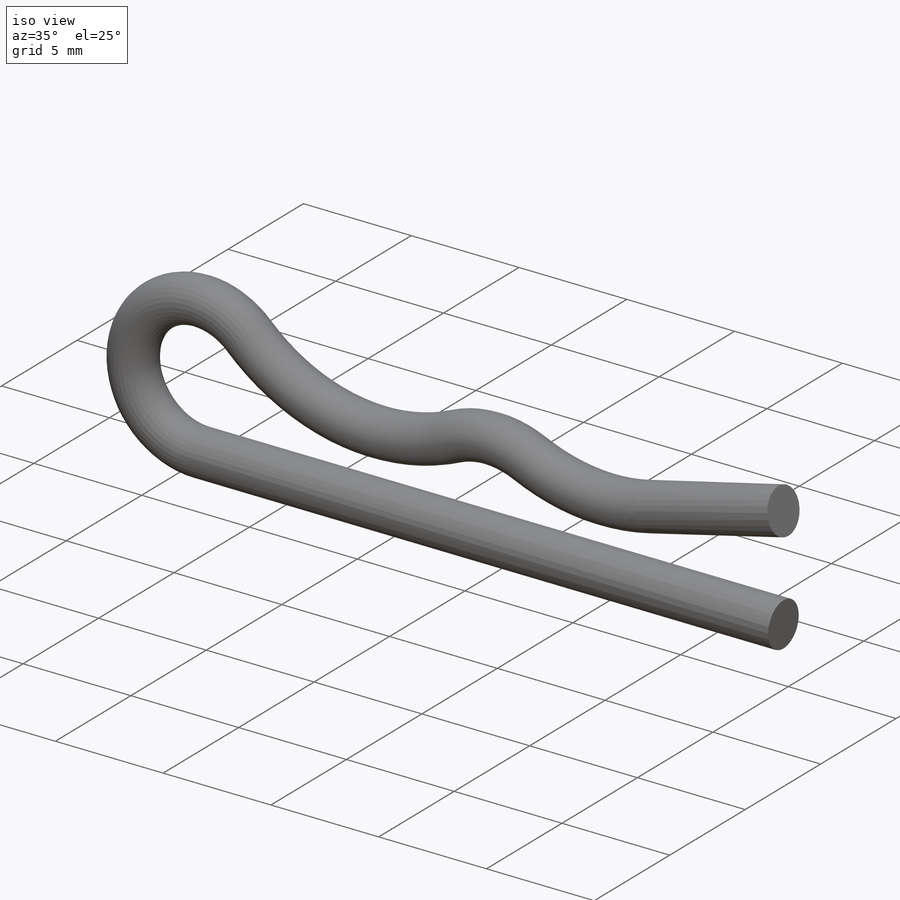
[diagram: iso view]
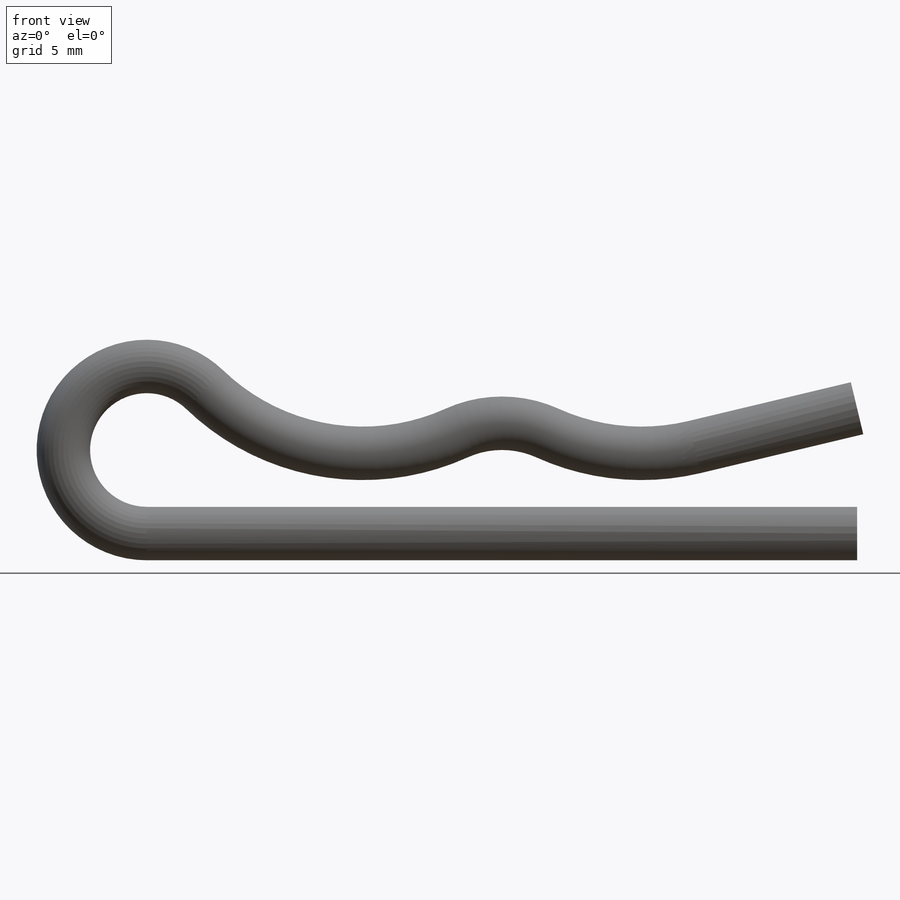
[diagram: front view]
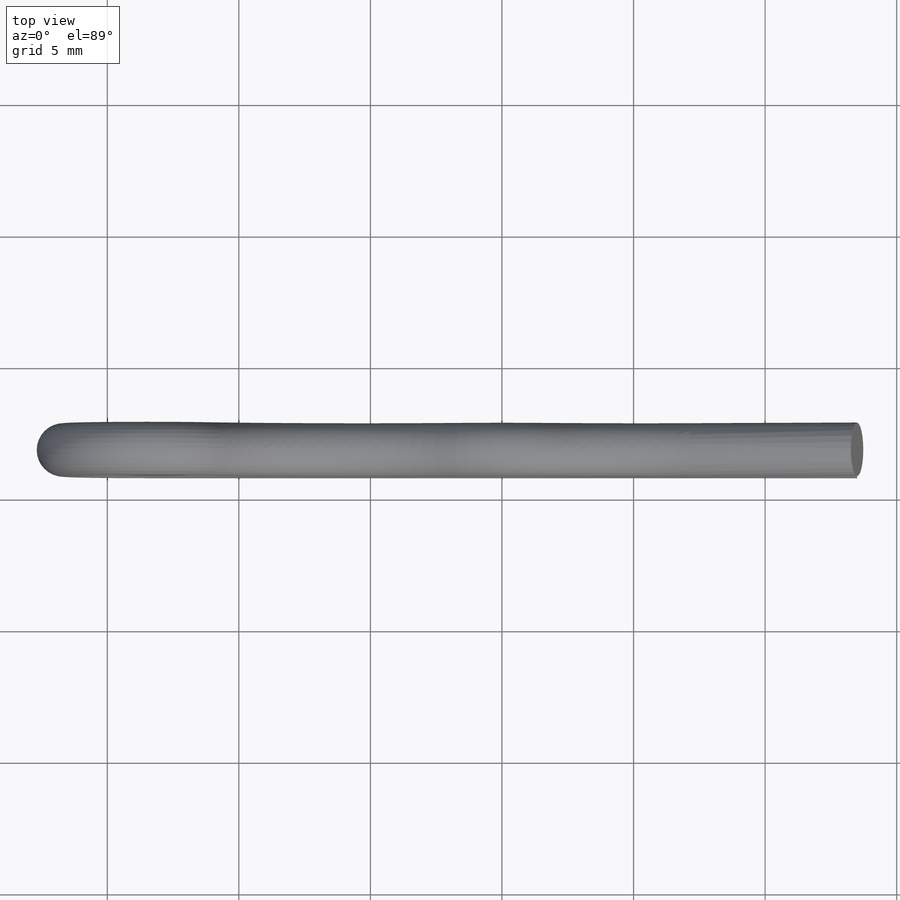
[diagram: top view]
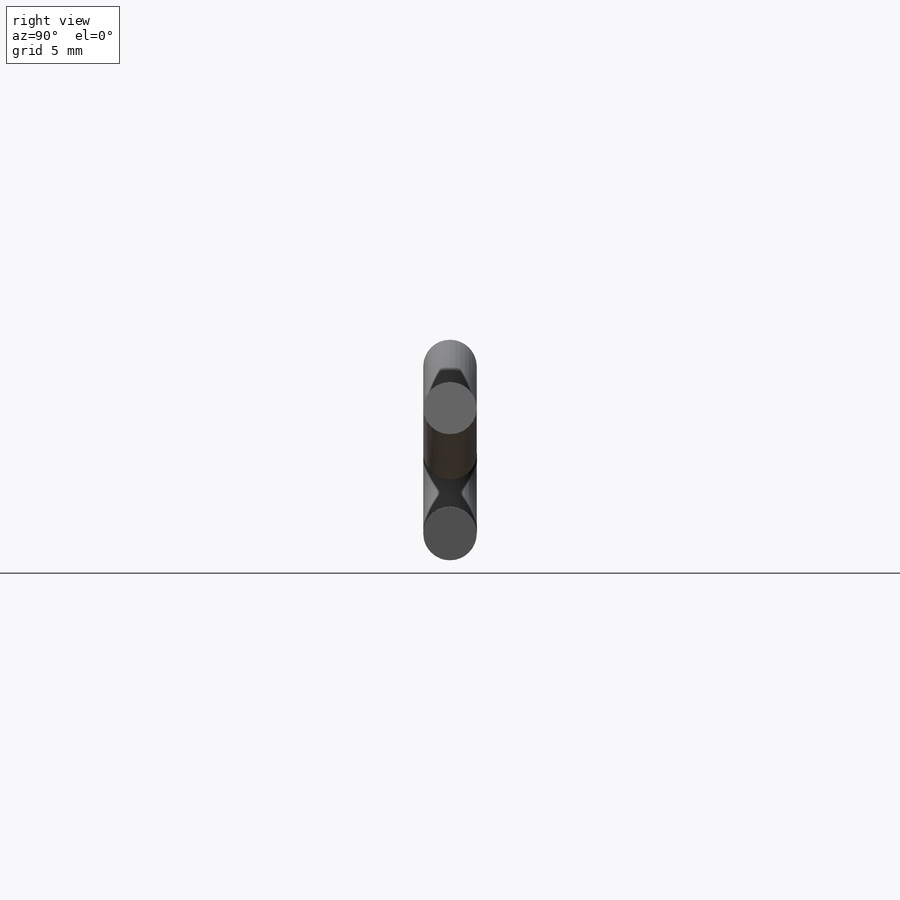
[diagram: right view]
SOLIDWORKS PART (.sldprt)
format: sldprt  version: not decoded by parser v0  size: 279,552 bytes
history: native  units: mm
features: sketch x6, extrude x2, chamfer x2, plane x2, material x1, cut_extrude x1, sweep x1 (+13 scaffold rows collapsed)
feature tree (28):
  scaffold x13  (default folders/planes/origin — collapsed)
  material  "Material <not specified>"
  sketch  "Sketch1"  dims[dia=6.35mm]
  extrude  "Extrude1"  Depth=50.8mm Lg=50.8mm
  sketch  "Sketch2"  dims[head dia=9.652mm]
  extrude  "Extrude2"  Depth=2.54mm head ht=2.54mm
  chamfer  "Chamfer1"  Distance=0.508mm Angle=45deg
  sketch  "Sketch3"  dims[hole dia=~2.38125mm useable Lg=46.0375mm]
  cut_extrude  "Extrude3"  [1 undecoded]
  chamfer  "Chamfer2"  Distance=0.3175mm Angle=45deg
  plane  "Plane1"
  sketch  "Sketch6"  dims[pin dia=2.032mm D2=6.35mm pin Lg=30.1625mm D1=3.048mm]
  plane  "Plane2"
  sketch  "Sketch7"
  sweep  "Sweep1"
  sketch  "Sketch8"
decode coverage: 8 of 12 modeling features carry decoded parameters
note: ~ marks probable driven/reference dimensions
note: 1 parameter value undecoded
note: suppression state not decoded; provenance and decode notes live in map.json
